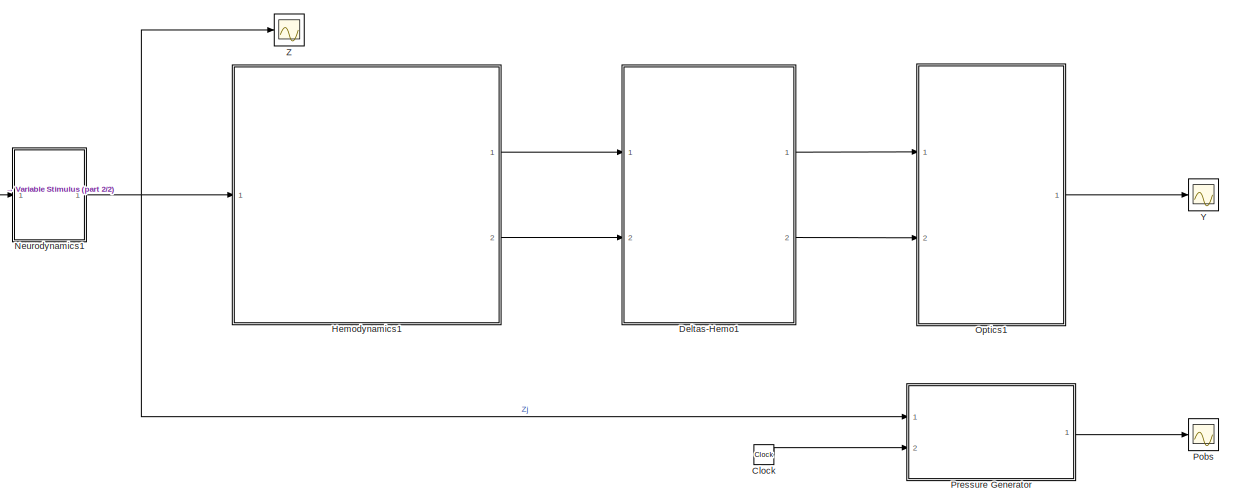
[diagram: root canvas - part 1/2, most of the canvas]
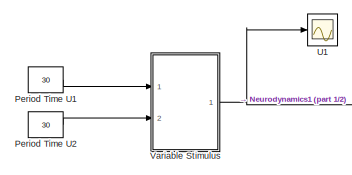
[diagram: root canvas - part 2/2, middle left region]
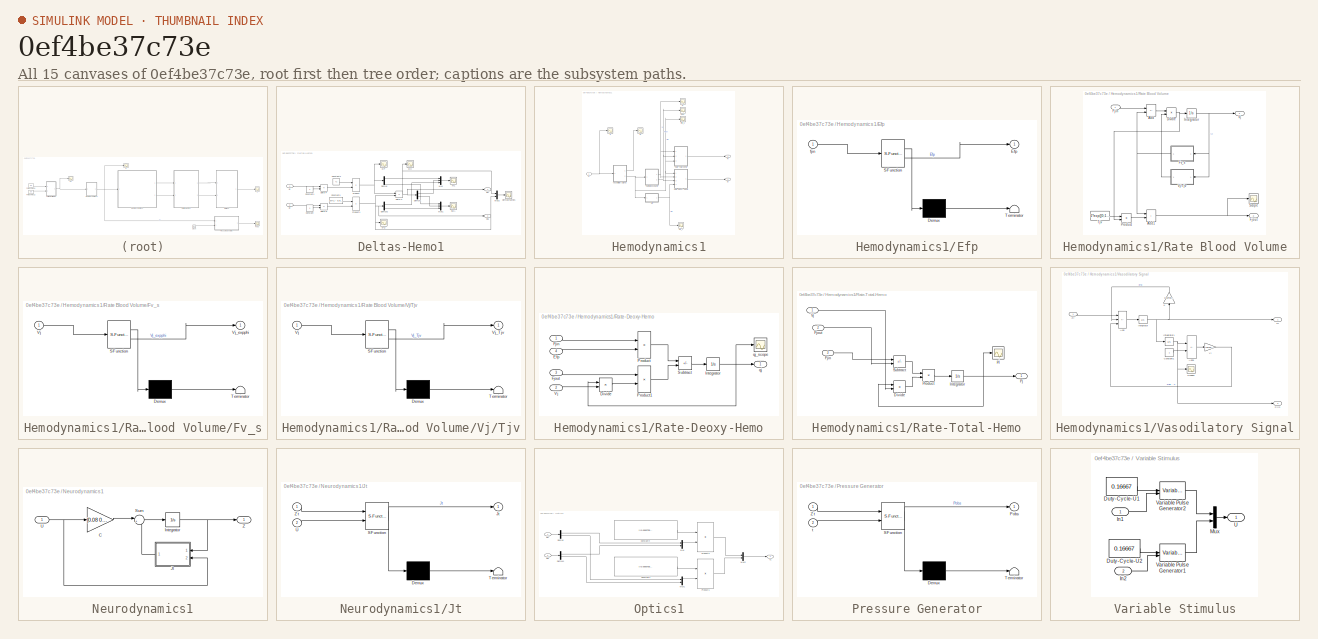
[diagram: thumbnail index - all 15 canvases of the model, root first then tree order]
MODEL slx_0ef4be37c73e
KIND model
CONFIG AbsTol = auto
CONFIG EnableMultiTasking = off
CONFIG FixedStep = auto
CONFIG MaxStep = auto
CONFIG MinStep = auto
CONFIG RelTol = 1e-3
CONFIG SampleTimeConstraint = Unconstrained
CONFIG SolverName = VariableStepAuto
CONFIG StartTime = 0.0
CONFIG StopTime = 120
BLOCK [Clock] Clock
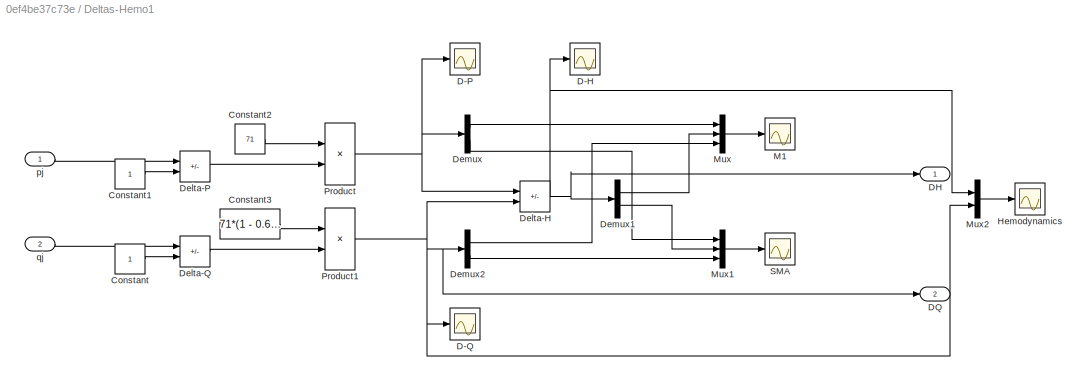
BLOCK [SubSystem] Deltas-Hemo1
  Ports = [2, 2]
  RequestExecContextInheritance = off
BLOCK [Constant] Deltas-Hemo1/Constant
BLOCK [Constant] Deltas-Hemo1/Constant1
BLOCK [Constant] Deltas-Hemo1/Constant2
  Value = 71
BLOCK [Constant] Deltas-Hemo1/Constant3
  Value = 71*(1 - 0.65)
BLOCK [Scope] Deltas-Hemo1/D-H
  Floating = off
  NumInputPorts = 1
  Ports = [1]
  ScopeSpecificationString = Simulink.scopes.TimeScopeBlockCfg('CurrentConfiguration', extmgr.ConfigurationSet(extmgr.Configuration('Core','General UI',true),extmgr.Configuration('Core','Source UI',true),extmgr.Configuration('Sources','WiredSimulink',true,'DataLoggingVariableName','ScopeData7'),extmgr.Configuration('Visuals','Time Domain',true,'SerializedDisplays',{struct('MinYLimReal','-2.88306','MaxYLimReal','17.00039','YLa...<+1448ch>
BLOCK [Scope] Deltas-Hemo1/D-P
  Floating = off
  NumInputPorts = 1
  Ports = [1]
  ScopeSpecificationString = Simulink.scopes.TimeScopeBlockCfg('CurrentConfiguration', extmgr.ConfigurationSet(extmgr.Configuration('Core','General UI',true),extmgr.Configuration('Core','Source UI',true),extmgr.Configuration('Sources','WiredSimulink',true,'DataLoggingVariableName','ScopeData5'),extmgr.Configuration('Visuals','Time Domain',true,'SerializedDisplays',{struct('MinYLimReal','-2.54989','MaxYLimReal','15.75385','YLa...<+1449ch>
BLOCK [Scope] Deltas-Hemo1/D-Q
  Floating = off
  NumInputPorts = 1
  Ports = [1]
  ScopeSpecificationString = Simulink.scopes.TimeScopeBlockCfg('CurrentConfiguration', extmgr.ConfigurationSet(extmgr.Configuration('Core','General UI',true),extmgr.Configuration('Core','Source UI',true),extmgr.Configuration('Sources','WiredSimulink',true,'DataLoggingVariableName','ScopeData6'),extmgr.Configuration('Visuals','Time Domain',true,'SerializedDisplays',{struct('MinYLimReal','-1.63975','MaxYLimReal','0.38869','YLab...<+1447ch>
BLOCK [Outport] Deltas-Hemo1/DH
BLOCK [Outport] Deltas-Hemo1/DQ
  Port = 2
BLOCK [Sum] Deltas-Hemo1/Delta-H
  IconShape = rectangular
  Inputs = +-
  Ports = [2, 1]
BLOCK [Sum] Deltas-Hemo1/Delta-P
  IconShape = rectangular
  Inputs = +-
  Ports = [2, 1]
BLOCK [Sum] Deltas-Hemo1/Delta-Q
  IconShape = rectangular
  Inputs = +-
  Ports = [2, 1]
BLOCK [Demux] Deltas-Hemo1/Demux
  Outputs = 2
  Ports = [1, 2]
BLOCK [Demux] Deltas-Hemo1/Demux1
  Outputs = 2
  Ports = [1, 2]
BLOCK [Demux] Deltas-Hemo1/Demux2
  Outputs = 2
  Ports = [1, 2]
BLOCK [Scope] Deltas-Hemo1/Hemodynamics
  Floating = off
  NumInputPorts = 1
  Ports = [1]
  ScopeSpecificationString = Simulink.scopes.TimeScopeBlockCfg('CurrentConfiguration', extmgr.ConfigurationSet(extmgr.Configuration('Core','General UI',true,'FigureColor',[1 1 1]),extmgr.Configuration('Core','Source UI',true),extmgr.Configuration('Sources','WiredSimulink',true,'DataLoggingVariableName','ScopeData1'),extmgr.Configuration('Visuals','Time Domain',true,'PlotType','Line','SerializedDisplays',{struct('MinYLimReal',...<+2168ch>
BLOCK [Scope] Deltas-Hemo1/M1
  Floating = off
  NumInputPorts = 1
  Ports = [1]
  ScopeSpecificationString = Simulink.scopes.TimeScopeBlockCfg('CurrentConfiguration', extmgr.ConfigurationSet(extmgr.Configuration('Core','General UI',true),extmgr.Configuration('Core','Source UI',true),extmgr.Configuration('Sources','WiredSimulink',true,'DataLoggingVariableName','ScopeData8'),extmgr.Configuration('Visuals','Time Domain',true,'SerializedDisplays',{struct('MinYLimReal','-2.53548','MaxYLimReal','8.40407','YLab...<+1768ch>
BLOCK [Mux] Deltas-Hemo1/Mux
  DisplayOption = bar
  Inputs = 3
  Ports = [3, 1]
BLOCK [Mux] Deltas-Hemo1/Mux1
  DisplayOption = bar
  Inputs = 3
  Ports = [3, 1]
BLOCK [Mux] Deltas-Hemo1/Mux2
  DisplayOption = bar
  Inputs = 2
  Ports = [2, 1]
BLOCK [Product] Deltas-Hemo1/Product
  Ports = [2, 1]
BLOCK [Product] Deltas-Hemo1/Product1
  Ports = [2, 1]
BLOCK [Scope] Deltas-Hemo1/SMA
  Floating = off
  NumInputPorts = 1
  Ports = [1]
  ScopeSpecificationString = Simulink.scopes.TimeScopeBlockCfg('CurrentConfiguration', extmgr.ConfigurationSet(extmgr.Configuration('Core','General UI',true),extmgr.Configuration('Core','Source UI',true),extmgr.Configuration('Sources','WiredSimulink',true,'DataLoggingVariableName','ScopeData9'),extmgr.Configuration('Visuals','Time Domain',true,'SerializedDisplays',{struct('MinYLimReal','-3.33791','MaxYLimReal','17.25675','YLa...<+1774ch>
BLOCK [Inport] Deltas-Hemo1/pj
BLOCK [Inport] Deltas-Hemo1/qj
  Port = 2
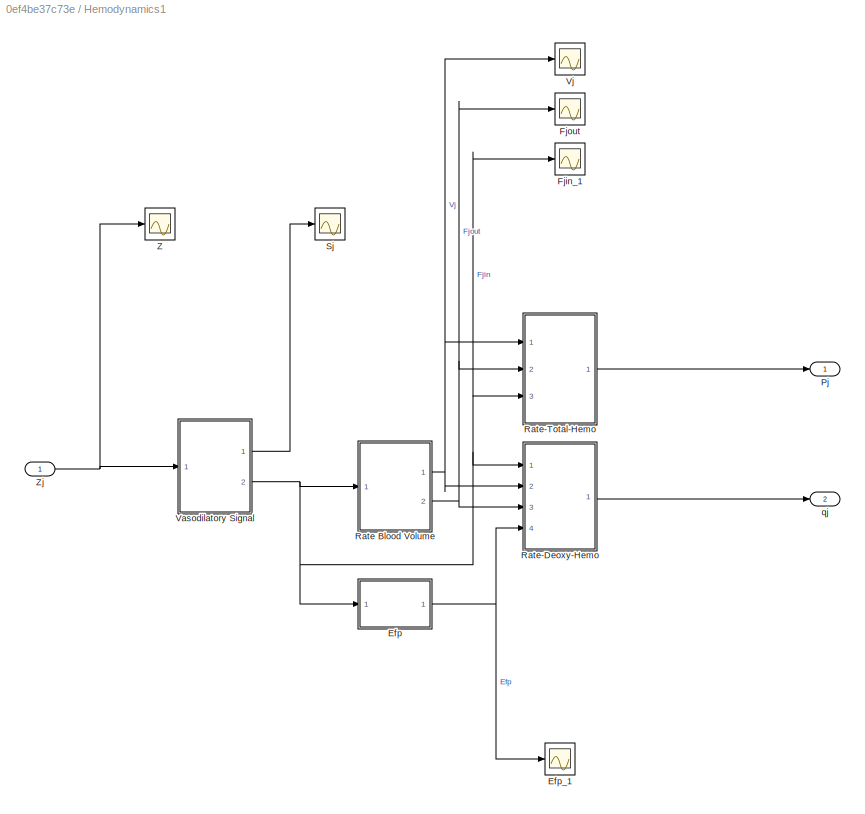
BLOCK [SubSystem] Hemodynamics1
  Ports = [1, 2]
  RequestExecContextInheritance = off
BLOCK [SubSystem] Hemodynamics1/Efp
  ErrorFcn = Stateflow.Translate.translate
  PermitHierarchicalResolution = ExplicitOnly
  Ports = [1, 1]
  RequestExecContextInheritance = off
  SFBlockType = MATLAB Function
  TreatAsAtomicUnit = on
BLOCK [Demux] Hemodynamics1/Efp/ Demux 
  Outputs = 1
  Ports = [1, 1]
BLOCK [S-Function] Hemodynamics1/Efp/ SFunction 
  EnableBusSupport = on
  FunctionName = sf_sfun
  PortCounts = [1 2]
  Ports = [1, 2]
  SFcnIsStateOwnerBlock = off
  SFunctionDeploymentMode = off
  Tag = Stateflow S-Function 1
BLOCK [Terminator] Hemodynamics1/Efp/ Terminator 
BLOCK [Outport] Hemodynamics1/Efp/Efp
BLOCK [Inport] Hemodynamics1/Efp/fjin
BLOCK [Scope] Hemodynamics1/Efp_1
  Floating = off
  NumInputPorts = 1
  Ports = [1]
  ScopeSpecificationString = Simulink.scopes.TimeScopeBlockCfg('CurrentConfiguration', extmgr.ConfigurationSet(extmgr.Configuration('Core','General UI',true),extmgr.Configuration('Core','Source UI',true),extmgr.Configuration('Sources','WiredSimulink',true,'DataLoggingVariableName','ScopeData7'),extmgr.Configuration('Visuals','Time Domain',true,'SerializedDisplays',{struct('MinYLimReal','0.87922','MaxYLimReal','1.03497','YLabe...<+1400ch>
BLOCK [Scope] Hemodynamics1/Fjin_1
  Floating = off
  NumInputPorts = 1
  Ports = [1]
  ScopeSpecificationString = Simulink.scopes.TimeScopeBlockCfg('CurrentConfiguration', extmgr.ConfigurationSet(extmgr.Configuration('Core','General UI',true),extmgr.Configuration('Core','Source UI',true),extmgr.Configuration('Sources','WiredSimulink',true,'DataLoggingVariableName','ScopeData6'),extmgr.Configuration('Visuals','Time Domain',true,'SerializedDisplays',{struct('MinYLimReal','0.95597','MaxYLimReal','1.16405','YLabe...<+1403ch>
BLOCK [Scope] Hemodynamics1/Fjout
  Floating = off
  NumInputPorts = 1
  Ports = [1]
  ScopeSpecificationString = Simulink.scopes.TimeScopeBlockCfg('CurrentConfiguration', extmgr.ConfigurationSet(extmgr.Configuration('Core','General UI',true),extmgr.Configuration('Core','Source UI',true),extmgr.Configuration('Sources','WiredSimulink',true,'DataLoggingVariableName','ScopeData5'),extmgr.Configuration('Visuals','Time Domain',true,'SerializedDisplays',{struct('MinYLimReal','0.96309','MaxYLimReal','1.1501','YLabel...<+1400ch>
BLOCK [Outport] Hemodynamics1/Pj
BLOCK [SubSystem] Hemodynamics1/Rate Blood Volume
  Ports = [1, 2]
  RequestExecContextInheritance = off
BLOCK [Sum] Hemodynamics1/Rate Blood Volume/Add
  IconShape = rectangular
  Inputs = +-
  Ports = [2, 1]
BLOCK [Sum] Hemodynamics1/Rate Blood Volume/Add1
  IconShape = rectangular
  Ports = [2, 1]
BLOCK [Product] Hemodynamics1/Rate Blood Volume/Divide
  Inputs = */
  Ports = [2, 1]
BLOCK [Inport] Hemodynamics1/Rate Blood Volume/Fjin
BLOCK [Outport] Hemodynamics1/Rate Blood Volume/Fjout
  Port = 2
BLOCK [SubSystem] Hemodynamics1/Rate Blood Volume/Fv_s
  ErrorFcn = Stateflow.Translate.translate
  PermitHierarchicalResolution = ExplicitOnly
  Ports = [1, 1]
  RequestExecContextInheritance = off
  SFBlockType = MATLAB Function
  TreatAsAtomicUnit = on
BLOCK [Demux] Hemodynamics1/Rate Blood Volume/Fv_s/ Demux 
  Outputs = 1
  Ports = [1, 1]
BLOCK [S-Function] Hemodynamics1/Rate Blood Volume/Fv_s/ SFunction 
  EnableBusSupport = on
  FunctionName = sf_sfun
  PortCounts = [1 2]
  Ports = [1, 2]
  SFcnIsStateOwnerBlock = off
  SFunctionDeploymentMode = off
  Tag = Stateflow S-Function 10
BLOCK [Terminator] Hemodynamics1/Rate Blood Volume/Fv_s/ Terminator 
BLOCK [Inport] Hemodynamics1/Rate Blood Volume/Fv_s/Vj
BLOCK [Outport] Hemodynamics1/Rate Blood Volume/Fv_s/Vj_expphi
BLOCK [Integrator] Hemodynamics1/Rate Blood Volume/Integrator
  InitialCondition = exp([0;0])
  Ports = [1, 1]
BLOCK [Product] Hemodynamics1/Rate Blood Volume/Product
  Ports = [2, 1]
BLOCK [Scope] Hemodynamics1/Rate Blood Volume/Scope
  Floating = off
  NumInputPorts = 1
  Ports = [1]
  ScopeSpecificationString = Simulink.scopes.TimeScopeBlockCfg('CurrentConfiguration', extmgr.ConfigurationSet(extmgr.Configuration('Core','General UI',true),extmgr.Configuration('Core','Source UI',true),extmgr.Configuration('Sources','WiredSimulink',true,'DataLoggingVariableName','ScopeData2'),extmgr.Configuration('Visuals','Time Domain',true,'SerializedDisplays',{struct('MinYLimReal','0.96417','MaxYLimReal','1.14994','YLabe...<+1372ch>
BLOCK [Constant] Hemodynamics1/Rate Blood Volume/Tjv
  Value = 2*exp([0;1])
BLOCK [Outport] Hemodynamics1/Rate Blood Volume/Vj
BLOCK [SubSystem] Hemodynamics1/Rate Blood Volume/Vj//Tjv
  ErrorFcn = Stateflow.Translate.translate
  PermitHierarchicalResolution = ExplicitOnly
  Ports = [1, 1]
  RequestExecContextInheritance = off
  SFBlockType = MATLAB Function
  TreatAsAtomicUnit = on
BLOCK [Demux] Hemodynamics1/Rate Blood Volume/Vj//Tjv/ Demux 
  Outputs = 1
  Ports = [1, 1]
BLOCK [S-Function] Hemodynamics1/Rate Blood Volume/Vj//Tjv/ SFunction 
  EnableBusSupport = on
  FunctionName = sf_sfun
  PortCounts = [1 2]
  Ports = [1, 2]
  SFcnIsStateOwnerBlock = off
  SFunctionDeploymentMode = off
  Tag = Stateflow S-Function 11
BLOCK [Terminator] Hemodynamics1/Rate Blood Volume/Vj//Tjv/ Terminator 
BLOCK [Inport] Hemodynamics1/Rate Blood Volume/Vj//Tjv/Vj
BLOCK [Outport] Hemodynamics1/Rate Blood Volume/Vj//Tjv/Vj_Tjv
BLOCK [SubSystem] Hemodynamics1/Rate-Deoxy-Hemo
  Ports = [4, 1]
  RequestExecContextInheritance = off
BLOCK [Product] Hemodynamics1/Rate-Deoxy-Hemo/Divide
  Inputs = */
  Ports = [2, 1]
BLOCK [Inport] Hemodynamics1/Rate-Deoxy-Hemo/Efp
  Port = 4
BLOCK [Inport] Hemodynamics1/Rate-Deoxy-Hemo/Fjin
BLOCK [Inport] Hemodynamics1/Rate-Deoxy-Hemo/Fjout
  Port = 3
BLOCK [Integrator] Hemodynamics1/Rate-Deoxy-Hemo/Integrator
  InitialCondition = exp([0;0])
  Ports = [1, 1]
BLOCK [Product] Hemodynamics1/Rate-Deoxy-Hemo/Product
  Ports = [2, 1]
BLOCK [Product] Hemodynamics1/Rate-Deoxy-Hemo/Product1
  Ports = [2, 1]
BLOCK [Sum] Hemodynamics1/Rate-Deoxy-Hemo/Subtract
  IconShape = rectangular
  Inputs = +-
  Ports = [2, 1]
BLOCK [Inport] Hemodynamics1/Rate-Deoxy-Hemo/Vj
  Port = 2
BLOCK [Outport] Hemodynamics1/Rate-Deoxy-Hemo/qj
BLOCK [Scope] Hemodynamics1/Rate-Deoxy-Hemo/qj_scope
  Floating = off
  NumInputPorts = 1
  Ports = [1]
  ScopeSpecificationString = Simulink.scopes.TimeScopeBlockCfg('CurrentConfiguration', extmgr.ConfigurationSet(extmgr.Configuration('Core','General UI',true),extmgr.Configuration('Core','Source UI',true),extmgr.Configuration('Sources','WiredSimulink',true,'DataLoggingVariableName','ScopeData1'),extmgr.Configuration('Visuals','Time Domain',true,'SerializedDisplays',{struct('MinYLimReal','0.9335','MaxYLimReal','1.01624','YLabel...<+1411ch>
BLOCK [SubSystem] Hemodynamics1/Rate-Total-Hemo
  Ports = [3, 1]
  RequestExecContextInheritance = off
BLOCK [Product] Hemodynamics1/Rate-Total-Hemo/Divide
  Inputs = */
  Ports = [2, 1]
BLOCK [Inport] Hemodynamics1/Rate-Total-Hemo/Fjin
  Port = 3
BLOCK [Inport] Hemodynamics1/Rate-Total-Hemo/Fjout
  Port = 2
BLOCK [Integrator] Hemodynamics1/Rate-Total-Hemo/Integrator
  InitialCondition = exp([0;0])
  Ports = [1, 1]
BLOCK [Outport] Hemodynamics1/Rate-Total-Hemo/Pj
BLOCK [Product] Hemodynamics1/Rate-Total-Hemo/Product
  Ports = [2, 1]
BLOCK [Sum] Hemodynamics1/Rate-Total-Hemo/Subtract
  IconShape = rectangular
  Inputs = +-
  Ports = [2, 1]
BLOCK [Inport] Hemodynamics1/Rate-Total-Hemo/Vj
BLOCK [Scope] Hemodynamics1/Rate-Total-Hemo/pj
  Floating = off
  NumInputPorts = 1
  Ports = [1]
  ScopeSpecificationString = Simulink.scopes.TimeScopeBlockCfg('CurrentConfiguration', extmgr.ConfigurationSet(extmgr.Configuration('Core','General UI',true),extmgr.Configuration('Core','Source UI',true),extmgr.Configuration('Sources','WiredSimulink',true,'DataLoggingVariableName','ScopeData2'),extmgr.Configuration('Visuals','Time Domain',true,'SerializedDisplays',{struct('MinYLimReal','0.96327','MaxYLimReal','1.22259','YLabe...<+1415ch>
BLOCK [Scope] Hemodynamics1/Sj
  Floating = off
  NumInputPorts = 1
  Ports = [1]
  ScopeSpecificationString = Simulink.scopes.TimeScopeBlockCfg('CurrentConfiguration', extmgr.ConfigurationSet(extmgr.Configuration('Core','General UI',true),extmgr.Configuration('Core','Source UI',true),extmgr.Configuration('Sources','WiredSimulink',true,'DataLoggingVariableName','ScopeData1'),extmgr.Configuration('Visuals','Time Domain',true,'SerializedDisplays',{struct('MinYLimReal','-0.05482','MaxYLimReal','0.05022','YLab...<+1439ch>
BLOCK [SubSystem] Hemodynamics1/Vasodilatory Signal
  Ports = [1, 2]
  RequestExecContextInheritance = off
BLOCK [Sum] Hemodynamics1/Vasodilatory Signal/Add
  IconShape = rectangular
  Inputs = +--
  Ports = [3, 1]
BLOCK [Sum] Hemodynamics1/Vasodilatory Signal/Add1
  IconShape = rectangular
  Inputs = +-
  Ports = [2, 1]
BLOCK [Constant] Hemodynamics1/Vasodilatory Signal/Constant1
BLOCK [Outport] Hemodynamics1/Vasodilatory Signal/Fjin
  Port = 2
BLOCK [Integrator] Hemodynamics1/Vasodilatory Signal/Integrator
  Ports = [1, 1]
BLOCK [Integrator] Hemodynamics1/Vasodilatory Signal/Integrator1
  InitialCondition = exp([0;0])
  Ports = [1, 1]
BLOCK [Gain] Hemodynamics1/Vasodilatory Signal/K
  Gain = 0.64*exp([0;0.05])
  NameLocation = right
BLOCK [Scope] Hemodynamics1/Vasodilatory Signal/Scope1
  Floating = off
  NumInputPorts = 1
  Ports = [1]
  ScopeSpecificationString = Simulink.scopes.TimeScopeBlockCfg('CurrentConfiguration', extmgr.ConfigurationSet(extmgr.Configuration('Core','General UI',true),extmgr.Configuration('Core','Source UI',true),extmgr.Configuration('Sources','WiredSimulink',true,'DataLoggingVariableName','ScopeData1'),extmgr.Configuration('Visuals','Time Domain',true,'SerializedDisplays',{struct('MinYLimReal','-0.02898','MaxYLimReal','0.08445','YLab...<+1370ch>
BLOCK [Outport] Hemodynamics1/Vasodilatory Signal/Sj
BLOCK [Gain] Hemodynamics1/Vasodilatory Signal/Yj
  Gain = 0.32*exp([0;0.05])
BLOCK [Inport] Hemodynamics1/Vasodilatory Signal/Zj
BLOCK [Scope] Hemodynamics1/Vj
  Floating = off
  NumInputPorts = 1
  Ports = [1]
  ScopeSpecificationString = Simulink.scopes.TimeScopeBlockCfg('CurrentConfiguration', extmgr.ConfigurationSet(extmgr.Configuration('Core','General UI',true),extmgr.Configuration('Core','Source UI',true),extmgr.Configuration('Sources','WiredSimulink',true,'DataLoggingVariableName','ScopeData4'),extmgr.Configuration('Visuals','Time Domain',true,'SerializedDisplays',{struct('MinYLimReal','0.98899','MaxYLimReal','1.04469','YLabe...<+1398ch>
BLOCK [Scope] Hemodynamics1/Z
  Floating = off
  NumInputPorts = 1
  Ports = [1]
  ScopeSpecificationString = Simulink.scopes.TimeScopeBlockCfg('CurrentConfiguration', extmgr.ConfigurationSet(extmgr.Configuration('Core','General UI',true),extmgr.Configuration('Core','Source UI',true),extmgr.Configuration('Sources','WiredSimulink',true),extmgr.Configuration('Visuals','Time Domain',true,'SerializedDisplays',{struct('MinYLimReal','-0.0106','MaxYLimReal','0.05688','YLabelReal','','MinYLimMag','0.00000','MaxYL...<+1357ch>
BLOCK [Inport] Hemodynamics1/Zj
BLOCK [Outport] Hemodynamics1/qj
  Port = 2
BLOCK [SubSystem] Neurodynamics1
  Ports = [1, 1]
  RequestExecContextInheritance = off
BLOCK [Gain] Neurodynamics1/C
  Gain = [0.08 0;0.06 0]
  Multiplication = Matrix(K*u)
BLOCK [Integrator] Neurodynamics1/Integrator
  Ports = [1, 1]
BLOCK [SubSystem] Neurodynamics1/Jt
  ErrorFcn = Stateflow.Translate.translate
  PermitHierarchicalResolution = ExplicitOnly
  Ports = [2, 1]
  RequestExecContextInheritance = off
  SFBlockType = MATLAB Function
  TreatAsAtomicUnit = on
BLOCK [Demux] Neurodynamics1/Jt/ Demux 
  Outputs = 1
  Ports = [1, 1]
BLOCK [S-Function] Neurodynamics1/Jt/ SFunction 
  EnableBusSupport = on
  FunctionName = sf_sfun
  PortCounts = [2 2]
  Ports = [2, 2]
  SFcnIsStateOwnerBlock = off
  SFunctionDeploymentMode = off
  Tag = Stateflow S-Function 12
BLOCK [Terminator] Neurodynamics1/Jt/ Terminator 
BLOCK [Outport] Neurodynamics1/Jt/Jt
BLOCK [Inport] Neurodynamics1/Jt/U
  Port = 2
BLOCK [Inport] Neurodynamics1/Jt/Zt
BLOCK [Sum] Neurodynamics1/Sum
  Inputs = |++
  Ports = [2, 1]
BLOCK [Inport] Neurodynamics1/U
BLOCK [Outport] Neurodynamics1/Z
BLOCK [SubSystem] Optics1
  Ports = [2, 1]
  RequestExecContextInheritance = off
BLOCK [Constant] Optics1/Constant1
  Value = [(0.00007358252*7.5) (0.0001104714*6.5);(0.0001159306*7.5) (0.00007858993*6.5)]
BLOCK [Constant] Optics1/Constant4
  Value = [(0.00007358252*7.5) (0.0001104714*6.5);(0.0001159306*7.5) (0.00007858993*6.5)]
BLOCK [Inport] Optics1/DH
BLOCK [Inport] Optics1/DQ
  Port = 2
BLOCK [Demux] Optics1/Demux
  Outputs = 2
  Ports = [1, 2]
BLOCK [Demux] Optics1/Demux1
  Outputs = 2
  Ports = [1, 2]
BLOCK [Mux] Optics1/Mux
  DisplayOption = bar
  Inputs = 2
  Ports = [2, 1]
BLOCK [Mux] Optics1/Mux1
  DisplayOption = bar
  Inputs = 2
  Ports = [2, 1]
BLOCK [Mux] Optics1/Mux2
  DisplayOption = bar
  Inputs = 2
  Ports = [2, 1]
BLOCK [Product] Optics1/Product1
  Multiplication = Matrix(*)
  Ports = [2, 1]
BLOCK [Product] Optics1/Product2
  Multiplication = Matrix(*)
  Ports = [2, 1]
BLOCK [Outport] Optics1/Y1
BLOCK [Constant] Period Time U1
  Value = 30
BLOCK [Constant] Period Time U2
  Value = 30
BLOCK [Scope] Pobs
  Floating = off
  NumInputPorts = 1
  Ports = [1]
  ScopeSpecificationString = Simulink.scopes.TimeScopeBlockCfg('CurrentConfiguration', extmgr.ConfigurationSet(extmgr.Configuration('Core','General UI',true,'FigureColor',[0 0 0]),extmgr.Configuration('Core','Source UI',true),extmgr.Configuration('Sources','WiredSimulink',true,'DataLoggingVariableName','ScopeData1'),extmgr.Configuration('Visuals','Time Domain',true,'SerializedDisplays',{struct('MinYLimReal','-0.00812','MaxYLi...<+1653ch>
BLOCK [SubSystem] Pressure Generator
  ErrorFcn = Stateflow.Translate.translate
  PermitHierarchicalResolution = ExplicitOnly
  Ports = [2, 1]
  RequestExecContextInheritance = off
  SFBlockType = MATLAB Function
  TreatAsAtomicUnit = on
BLOCK [Demux] Pressure Generator/ Demux 
  Outputs = 1
  Ports = [1, 1]
BLOCK [S-Function] Pressure Generator/ SFunction 
  EnableBusSupport = on
  FunctionName = sf_sfun
  PortCounts = [2 2]
  Ports = [2, 2]
  SFcnIsStateOwnerBlock = off
  SFunctionDeploymentMode = off
  Tag = Stateflow S-Function 13
BLOCK [Terminator] Pressure Generator/ Terminator 
BLOCK [Outport] Pressure Generator/Pobs
BLOCK [Inport] Pressure Generator/Zt
BLOCK [Inport] Pressure Generator/t
  Port = 2
BLOCK [Scope] U1
  Floating = off
  NumInputPorts = 1
  Ports = [1]
  ScopeSpecificationString = Simulink.scopes.TimeScopeBlockCfg('CurrentConfiguration', extmgr.ConfigurationSet(extmgr.Configuration('Core','General UI',true,'FigureColor',[0 0 0]),extmgr.Configuration('Core','Source UI',true),extmgr.Configuration('Sources','WiredSimulink',true,'DataLoggingVariableName','ScopeData1'),extmgr.Configuration('Visuals','Time Domain',true,'SerializedDisplays',{struct('MinYLimReal','-0.125','MaxYLimR...<+1667ch>
BLOCK [SubSystem] Variable Stimulus
  Ports = [2, 1]
  RequestExecContextInheritance = off
BLOCK [Constant] Variable Stimulus/Duty-Cycle-U1
  OutMax = [0.8]
  OutMin = [0]
  Value = 0.16667
BLOCK [Constant] Variable Stimulus/Duty-Cycle-U2
  OutMax = [0.8]
  OutMin = [0]
  Value = 0.16667
BLOCK [Inport] Variable Stimulus/In1
BLOCK [Inport] Variable Stimulus/In2
  Port = 2
BLOCK [Mux] Variable Stimulus/Mux
  DisplayOption = bar
  Inputs = 2
  Ports = [2, 1]
BLOCK [Outport] Variable Stimulus/U
BLOCK [VariablePulseGenerator] Variable Stimulus/Variable Pulse Generator1
  RunAtFixedTimeIntervals = on
  SampleTime = 1/10.4
BLOCK [VariablePulseGenerator] Variable Stimulus/Variable Pulse Generator2
  RunAtFixedTimeIntervals = on
  SampleTime = 1/10.4
BLOCK [Scope] Y
  Floating = off
  NumInputPorts = 1
  Ports = [1]
  ScopeSpecificationString = Simulink.scopes.TimeScopeBlockCfg('CurrentConfiguration', extmgr.ConfigurationSet(extmgr.Configuration('Core','General UI',true,'FigureColor',[0 0 0]),extmgr.Configuration('Core','Source UI',true),extmgr.Configuration('Sources','WiredSimulink',true,'DataLoggingVariableName','ScopeData3'),extmgr.Configuration('Visuals','Time Domain',true,'SerializedDisplays',{struct('MinYLimReal','-0.00232','MaxYLi...<+1680ch>
BLOCK [Scope] Z
  Floating = off
  NumInputPorts = 1
  Ports = [1]
  ScopeSpecificationString = Simulink.scopes.TimeScopeBlockCfg('CurrentConfiguration', extmgr.ConfigurationSet(extmgr.Configuration('Core','General UI',true,'FigureColor',[0 0 0]),extmgr.Configuration('Core','Source UI',true),extmgr.Configuration('Sources','WiredSimulink',true,'DataLoggingVariableName','ScopeData2'),extmgr.Configuration('Visuals','Time Domain',true,'SerializedDisplays',{struct('MinYLimReal','-0.0106','MaxYLim...<+1644ch>
LINE Clock:1 -> Pressure Generator:2
LINE Deltas-Hemo1/Constant1:1 -> Deltas-Hemo1/Delta-P:2
LINE Deltas-Hemo1/Constant2:1 -> Deltas-Hemo1/Product:1
LINE Deltas-Hemo1/Constant3:1 -> Deltas-Hemo1/Product1:1
LINE Deltas-Hemo1/Constant:1 -> Deltas-Hemo1/Delta-Q:2
NET Deltas-Hemo1/Delta-H:1 -> Deltas-Hemo1/D-H:1, Deltas-Hemo1/DH:1, Deltas-Hemo1/Demux1:1, Deltas-Hemo1/Mux2:1
LINE Deltas-Hemo1/Delta-P:1 -> Deltas-Hemo1/Product:2
LINE Deltas-Hemo1/Delta-Q:1 -> Deltas-Hemo1/Product1:2
LINE Deltas-Hemo1/Demux1:1 -> Deltas-Hemo1/Mux:2
LINE Deltas-Hemo1/Demux1:2 -> Deltas-Hemo1/Mux1:2
LINE Deltas-Hemo1/Demux2:1 -> Deltas-Hemo1/Mux:3
LINE Deltas-Hemo1/Demux2:2 -> Deltas-Hemo1/Mux1:3
LINE Deltas-Hemo1/Demux:1 -> Deltas-Hemo1/Mux:1
LINE Deltas-Hemo1/Demux:2 -> Deltas-Hemo1/Mux1:1
LINE Deltas-Hemo1/Mux1:1 -> Deltas-Hemo1/SMA:1
LINE Deltas-Hemo1/Mux2:1 -> Deltas-Hemo1/Hemodynamics:1
LINE Deltas-Hemo1/Mux:1 -> Deltas-Hemo1/M1:1
NET Deltas-Hemo1/Product1:1 -> Deltas-Hemo1/D-Q:1, Deltas-Hemo1/DQ:1, Deltas-Hemo1/Delta-H:2, Deltas-Hemo1/Demux2:1, Deltas-Hemo1/Mux2:2
NET Deltas-Hemo1/Product:1 -> Deltas-Hemo1/D-P:1, Deltas-Hemo1/Delta-H:1, Deltas-Hemo1/Demux:1
LINE Deltas-Hemo1/pj:1 -> Deltas-Hemo1/Delta-P:1
LINE Deltas-Hemo1/qj:1 -> Deltas-Hemo1/Delta-Q:1
LINE Deltas-Hemo1:1 -> Optics1:1
LINE Deltas-Hemo1:2 -> Optics1:2
NET Hemodynamics1/Efp:1 -> Hemodynamics1/Efp_1:1, Hemodynamics1/Rate-Deoxy-Hemo:4
NET Hemodynamics1/Rate Blood Volume/Add1:1 -> Hemodynamics1/Rate Blood Volume/Fjout:1, Hemodynamics1/Rate Blood Volume/Scope:1
LINE Hemodynamics1/Rate Blood Volume/Add:1 -> Hemodynamics1/Rate Blood Volume/Divide:1
NET Hemodynamics1/Rate Blood Volume/Divide:1 -> Hemodynamics1/Rate Blood Volume/Integrator:1, Hemodynamics1/Rate Blood Volume/Product:2
LINE Hemodynamics1/Rate Blood Volume/Fjin:1 -> Hemodynamics1/Rate Blood Volume/Add:1
NET Hemodynamics1/Rate Blood Volume/Fv_s:1 -> Hemodynamics1/Rate Blood Volume/Add1:1, Hemodynamics1/Rate Blood Volume/Add:2
NET Hemodynamics1/Rate Blood Volume/Integrator:1 -> Hemodynamics1/Rate Blood Volume/Fv_s:1, Hemodynamics1/Rate Blood Volume/Vj//Tjv:1, Hemodynamics1/Rate Blood Volume/Vj:1
LINE Hemodynamics1/Rate Blood Volume/Product:1 -> Hemodynamics1/Rate Blood Volume/Add1:2
LINE Hemodynamics1/Rate Blood Volume/Tjv:1 -> Hemodynamics1/Rate Blood Volume/Product:1
LINE Hemodynamics1/Rate Blood Volume/Vj//Tjv:1 -> Hemodynamics1/Rate Blood Volume/Divide:2
NET Hemodynamics1/Rate Blood Volume:1 -> Hemodynamics1/Rate-Deoxy-Hemo:2, Hemodynamics1/Rate-Total-Hemo:1, Hemodynamics1/Vj:1
NET Hemodynamics1/Rate Blood Volume:2 -> Hemodynamics1/Fjout:1, Hemodynamics1/Rate-Deoxy-Hemo:3, Hemodynamics1/Rate-Total-Hemo:2
LINE Hemodynamics1/Rate-Deoxy-Hemo/Divide:1 -> Hemodynamics1/Rate-Deoxy-Hemo/Product1:2
LINE Hemodynamics1/Rate-Deoxy-Hemo/Efp:1 -> Hemodynamics1/Rate-Deoxy-Hemo/Product:2
LINE Hemodynamics1/Rate-Deoxy-Hemo/Fjin:1 -> Hemodynamics1/Rate-Deoxy-Hemo/Product:1
LINE Hemodynamics1/Rate-Deoxy-Hemo/Fjout:1 -> Hemodynamics1/Rate-Deoxy-Hemo/Product1:1
NET Hemodynamics1/Rate-Deoxy-Hemo/Integrator:1 -> Hemodynamics1/Rate-Deoxy-Hemo/Divide:1, Hemodynamics1/Rate-Deoxy-Hemo/qj:1, Hemodynamics1/Rate-Deoxy-Hemo/qj_scope:1
LINE Hemodynamics1/Rate-Deoxy-Hemo/Product1:1 -> Hemodynamics1/Rate-Deoxy-Hemo/Subtract:2
LINE Hemodynamics1/Rate-Deoxy-Hemo/Product:1 -> Hemodynamics1/Rate-Deoxy-Hemo/Subtract:1
LINE Hemodynamics1/Rate-Deoxy-Hemo/Subtract:1 -> Hemodynamics1/Rate-Deoxy-Hemo/Integrator:1
LINE Hemodynamics1/Rate-Deoxy-Hemo/Vj:1 -> Hemodynamics1/Rate-Deoxy-Hemo/Divide:2
LINE Hemodynamics1/Rate-Deoxy-Hemo:1 -> Hemodynamics1/qj:1
LINE Hemodynamics1/Rate-Total-Hemo/Divide:1 -> Hemodynamics1/Rate-Total-Hemo/Product:2
LINE Hemodynamics1/Rate-Total-Hemo/Fjin:1 -> Hemodynamics1/Rate-Total-Hemo/Subtract:1
LINE Hemodynamics1/Rate-Total-Hemo/Fjout:1 -> Hemodynamics1/Rate-Total-Hemo/Subtract:2
NET Hemodynamics1/Rate-Total-Hemo/Integrator:1 -> Hemodynamics1/Rate-Total-Hemo/Divide:1, Hemodynamics1/Rate-Total-Hemo/Pj:1, Hemodynamics1/Rate-Total-Hemo/pj:1
LINE Hemodynamics1/Rate-Total-Hemo/Product:1 -> Hemodynamics1/Rate-Total-Hemo/Integrator:1
LINE Hemodynamics1/Rate-Total-Hemo/Subtract:1 -> Hemodynamics1/Rate-Total-Hemo/Product:1
LINE Hemodynamics1/Rate-Total-Hemo/Vj:1 -> Hemodynamics1/Rate-Total-Hemo/Divide:2
LINE Hemodynamics1/Rate-Total-Hemo:1 -> Hemodynamics1/Pj:1
LINE Hemodynamics1/Vasodilatory Signal/Add1:1 -> Hemodynamics1/Vasodilatory Signal/Yj:1
LINE Hemodynamics1/Vasodilatory Signal/Add:1 -> Hemodynamics1/Vasodilatory Signal/Integrator:1
LINE Hemodynamics1/Vasodilatory Signal/Constant1:1 -> Hemodynamics1/Vasodilatory Signal/Add1:2
NET Hemodynamics1/Vasodilatory Signal/Integrator1:1 -> Hemodynamics1/Vasodilatory Signal/Add1:1, Hemodynamics1/Vasodilatory Signal/Fjin:1, Hemodynamics1/Vasodilatory Signal/Scope1:1
NET Hemodynamics1/Vasodilatory Signal/Integrator:1 -> Hemodynamics1/Vasodilatory Signal/Integrator1:1, Hemodynamics1/Vasodilatory Signal/K:1, Hemodynamics1/Vasodilatory Signal/Sj:1
LINE Hemodynamics1/Vasodilatory Signal/K:1 -> Hemodynamics1/Vasodilatory Signal/Add:2
LINE Hemodynamics1/Vasodilatory Signal/Yj:1 -> Hemodynamics1/Vasodilatory Signal/Add:3
LINE Hemodynamics1/Vasodilatory Signal/Zj:1 -> Hemodynamics1/Vasodilatory Signal/Add:1
LINE Hemodynamics1/Vasodilatory Signal:1 -> Hemodynamics1/Sj:1
NET Hemodynamics1/Vasodilatory Signal:2 -> Hemodynamics1/Efp:1, Hemodynamics1/Fjin_1:1, Hemodynamics1/Rate Blood Volume:1, Hemodynamics1/Rate-Deoxy-Hemo:1, Hemodynamics1/Rate-Total-Hemo:3
NET Hemodynamics1/Zj:1 -> Hemodynamics1/Vasodilatory Signal:1, Hemodynamics1/Z:1
LINE Hemodynamics1:1 -> Deltas-Hemo1:1
LINE Hemodynamics1:2 -> Deltas-Hemo1:2
LINE Neurodynamics1/C:1 -> Neurodynamics1/Sum:1
NET Neurodynamics1/Integrator:1 -> Neurodynamics1/Jt:1, Neurodynamics1/Z:1
LINE Neurodynamics1/Jt:1 -> Neurodynamics1/Sum:2
LINE Neurodynamics1/Sum:1 -> Neurodynamics1/Integrator:1
NET Neurodynamics1/U:1 -> Neurodynamics1/C:1, Neurodynamics1/Jt:2
NET Neurodynamics1:1 -> Hemodynamics1:1, Pressure Generator:1, Z:1
LINE Optics1/Constant1:1 -> Optics1/Product1:1
LINE Optics1/Constant4:1 -> Optics1/Product2:1
LINE Optics1/DH:1 -> Optics1/Demux:1
LINE Optics1/DQ:1 -> Optics1/Demux1:1
LINE Optics1/Demux1:1 -> Optics1/Mux:2
LINE Optics1/Demux1:2 -> Optics1/Mux1:2
LINE Optics1/Demux:1 -> Optics1/Mux:1
LINE Optics1/Demux:2 -> Optics1/Mux1:1
LINE Optics1/Mux1:1 -> Optics1/Product1:2
LINE Optics1/Mux2:1 -> Optics1/Y1:1
LINE Optics1/Mux:1 -> Optics1/Product2:2
LINE Optics1/Product1:1 -> Optics1/Mux2:2
LINE Optics1/Product2:1 -> Optics1/Mux2:1
LINE Optics1:1 -> Y:1
LINE Period Time U1:1 -> Variable Stimulus:1
LINE Period Time U2:1 -> Variable Stimulus:2
LINE Pressure Generator:1 -> Pobs:1
LINE Variable Stimulus/Duty-Cycle-U1:1 -> Variable Stimulus/Variable Pulse Generator2:1
LINE Variable Stimulus/Duty-Cycle-U2:1 -> Variable Stimulus/Variable Pulse Generator1:1
LINE Variable Stimulus/In1:1 -> Variable Stimulus/Variable Pulse Generator2:2
LINE Variable Stimulus/In2:1 -> Variable Stimulus/Variable Pulse Generator1:2
LINE Variable Stimulus/Mux:1 -> Variable Stimulus/U:1
LINE Variable Stimulus/Variable Pulse Generator1:1 -> Variable Stimulus/Mux:2
LINE Variable Stimulus/Variable Pulse Generator2:1 -> Variable Stimulus/Mux:1
NET Variable Stimulus:1 -> Neurodynamics1:1, U1:1
note: NET lines group one-source signal fan-out (src -> all destinations, sorted); 1:1 wires keep LINE
CHART Hemodynamics1/Rate Blood Volume/Fv_s states=1 transitions=1
  STATE_LABEL 'eML_blk_kernel()'
  STATE_LABEL 'SCRIPT:\nfunction Vj_expphi = fcn(Vj)\nphi = 0.32;\nVj_expphi = Vj.^(1/phi);\n'
CHART Hemodynamics1/Rate Blood Volume/Vj//Tjv states=1 transitions=1
  STATE_LABEL 'eML_blk_kernel()'
  STATE_LABEL 'SCRIPT:\nfunction Vj_Tjv = fcn(Vj)\n    Tjv = 2*exp([0;1]);\n    Tj = 2*exp([0;0.05]);\nVj_Tjv =(Tj.*Tjv.*Vj);\n'
CHART Neurodynamics1/Jt states=1 transitions=1
  STATE_LABEL 'eML_blk_kernel()'
  STATE_LABEL "SCRIPT:\nfunction Jt = fcn(Zt, U)\n   A = [-0.16 -0.49;-0.02 -0.33];\n   nRegions  = size(A,1);\n   M = size(U,1); %nStimuli\n   simulationLength = size(U,2);\n   B = zeros(2,2,2);\n   B1 = [0 0; 0 0]; %There must be a B per stimulus\n   B2 = [-0.02 -0.77; 0.33 -1.31];\n   B(:,:,1) = B1;\n   B(:,:,2) = B2;\n      assert(M == size(B,3),...\n       'Unexpected number of induced connectivity parameters B.');\n   ...<+291ch>"
CHART Pressure Generator states=1 transitions=1
  STATE_LABEL 'eML_blk_kernel()'
  STATE_LABEL 'SCRIPT:\nfunction Pobs = fcn(Zt, t)\n    R=28.2; %Resistor [Ohms];\n    C=0.7; %Capacitor [Faradays];\n    V= Zt(1); %Voltage or system reference;\n    Vc = V * (exp(-t/(R*C))); % Voltage at the capacitor  \n    \nPobs = Vc;\n'
CHART Hemodynamics1/Efp states=1 transitions=1
  STATE_LABEL 'eML_blk_kernel()'
  STATE_LABEL 'SCRIPT:\nfunction Efp= fcn(fjin)\n\nEfp = (1 - (1 - 0.32).^ (1 ./ fjin))/0.32;\n'
CHART  states=0 transitions=0
CHART  states=0 transitions=0
CHART  states=0 transitions=0
CHART  states=0 transitions=0
CHART  states=0 transitions=0
